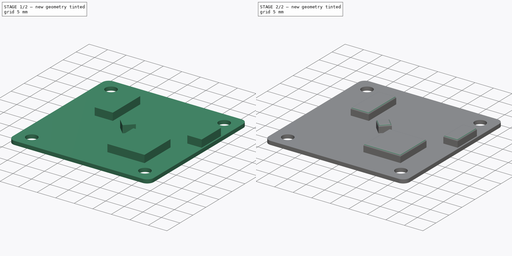
[diagram: build sequence overview — one tinted view per stage of 2, left to right]
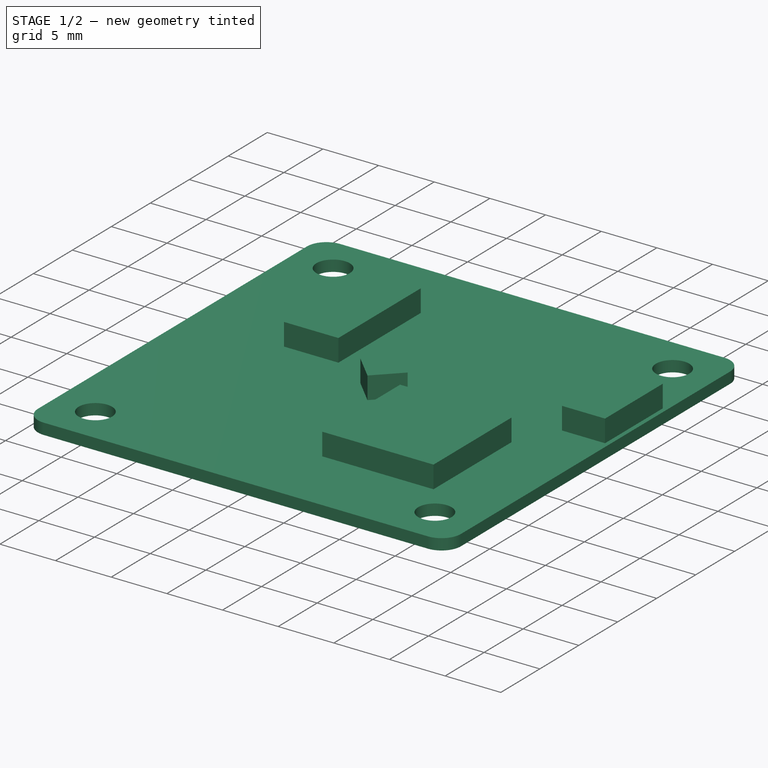
[diagram: stage 1 of 2 — iso view after this stage's code; geometry added in this stage tinted green]
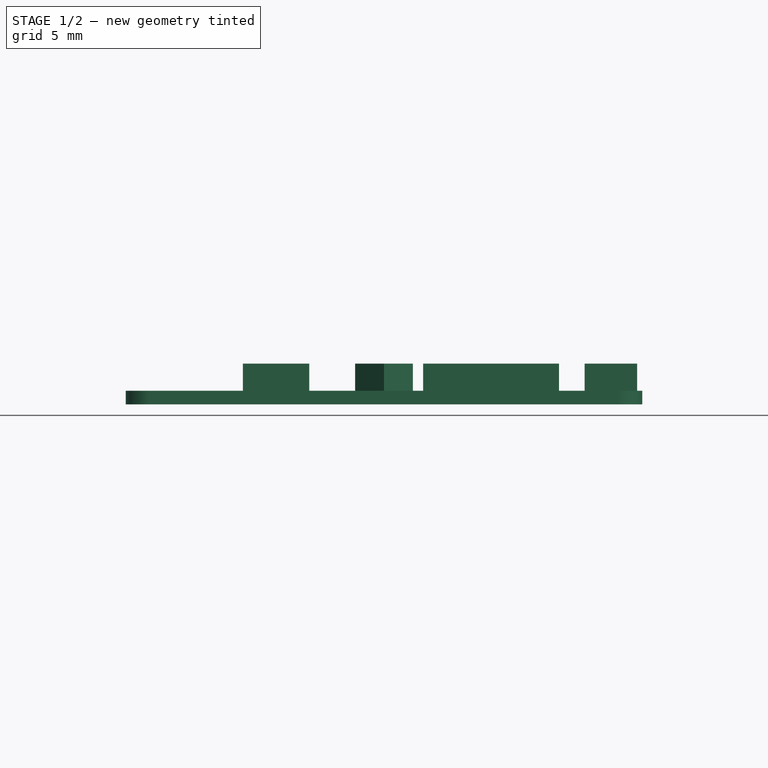
[diagram: stage 1 of 2 — front view after this stage's code; geometry added in this stage tinted green]
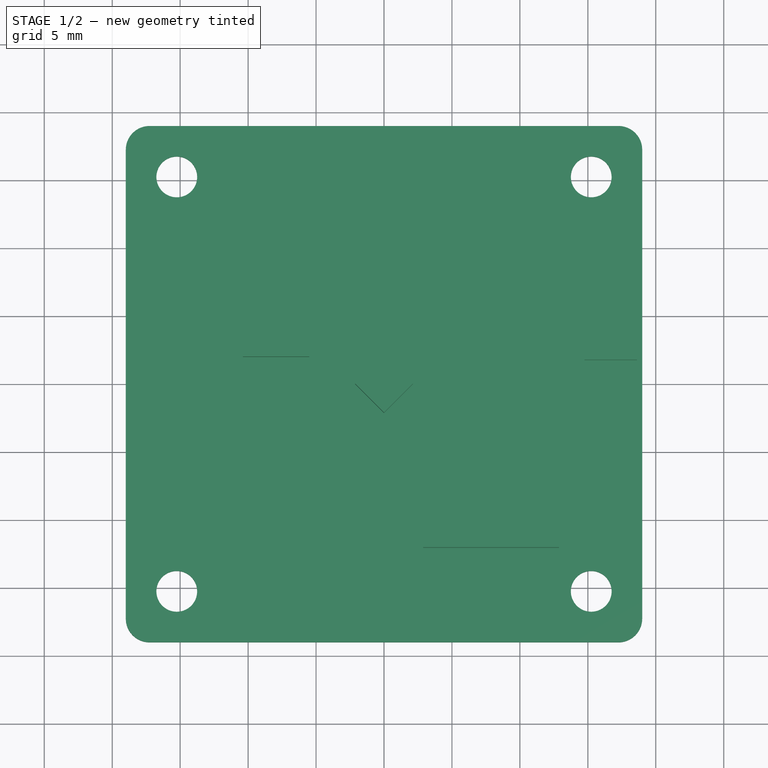
[diagram: stage 1 of 2 — top view after this stage's code; geometry added in this stage tinted green]
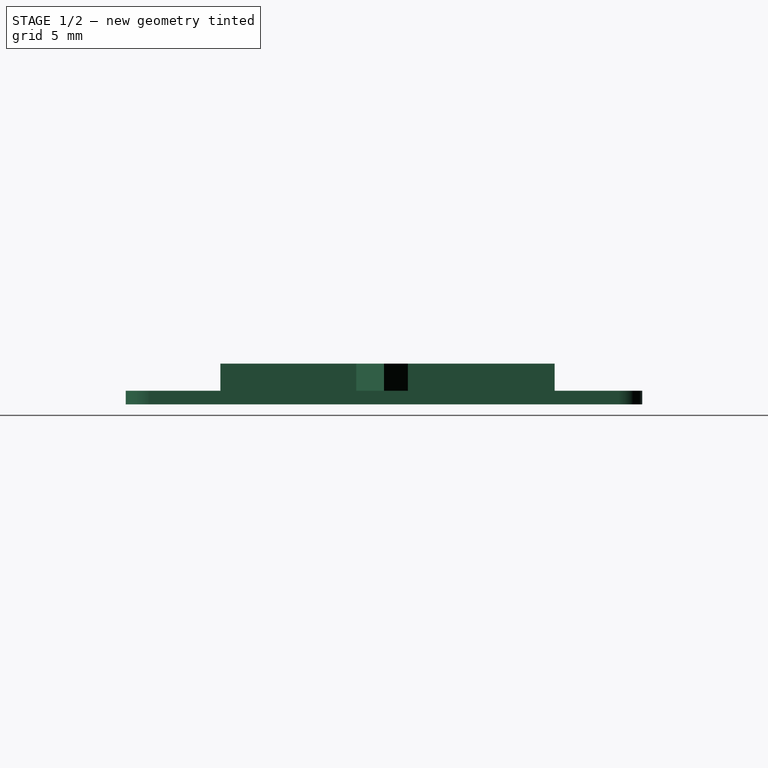
[diagram: stage 1 of 2 — right view after this stage's code; geometry added in this stage tinted green]
FCSTD DOCUMENT  (FreeCAD 0.18RUnknown)
Label: fc
License: All rights reserved
LicenseURL: http://en.wikipedia.org/wiki/All_rights_reserved
objects: Sketcher::SketchObject×2, PartDesign::Pad×2, PartDesign::Fillet×1, PartDesign::Body×1
note: 8 computed .brp shape members not serialized (recipe doc carries the construction recipe); baked Part::Feature solids carry a one-line shape summary decoded from their .brp

FEATURE [Sketcher::SketchObject] Sketch
  MapMode = 5
  Support = -> [XY_Plane]
  sketch-geometry (16):
    g0: LineSegment StartX=-17.25 StartY=19 StartZ=0 EndX=17.25 EndY=19 EndZ=0
    g1: LineSegment StartX=19 StartY=17.25 StartZ=0 EndX=19 EndY=-17.25 EndZ=0
    g2: LineSegment StartX=17.25 StartY=-19 StartZ=0 EndX=-17.25 EndY=-19 EndZ=0
    g3: LineSegment StartX=-19 StartY=-17.25 StartZ=0 EndX=-19 EndY=17.25 EndZ=0
    g4: ArcOfCircle CenterX=17.25 CenterY=17.25 CenterZ=0 NormalX=0 NormalY=0 NormalZ=1 AngleXU=0 Radius=1.75 StartAngle=0 EndAngle=1.5708
    g5: ArcOfCircle CenterX=-17.25 CenterY=17.25 CenterZ=0 NormalX=0 NormalY=0 NormalZ=1 AngleXU=0 Radius=1.75 StartAngle=1.5708 EndAngle=3.14159
    g6: ArcOfCircle CenterX=-17.25 CenterY=-17.25 CenterZ=0 NormalX=0 NormalY=0 NormalZ=1 AngleXU=0 Radius=1.75 StartAngle=3.14159 EndAngle=4.71239
    g7: ArcOfCircle CenterX=17.25 CenterY=-17.25 CenterZ=0 NormalX=0 NormalY=0 NormalZ=1 AngleXU=0 Radius=1.75 StartAngle=4.71239 EndAngle=6.28319
    g8: Circle CenterX=15.25 CenterY=15.25 CenterZ=0 NormalX=0 NormalY=0 NormalZ=1 AngleXU=0 Radius=1.5
    g9: Circle CenterX=-15.25 CenterY=-15.25 CenterZ=0 NormalX=0 NormalY=0 NormalZ=1 AngleXU=0 Radius=1.5
    g10: Circle CenterX=-15.25 CenterY=15.25 CenterZ=0 NormalX=0 NormalY=0 NormalZ=1 AngleXU=0 Radius=1.5
    g11: Circle CenterX=15.25 CenterY=-15.25 CenterZ=0 NormalX=0 NormalY=0 NormalZ=1 AngleXU=0 Radius=1.5
    g12: LineSegment [constr] StartX=-15.25 StartY=15.25 StartZ=0 EndX=15.25 EndY=15.25 EndZ=0
    g13: LineSegment [constr] StartX=15.25 StartY=15.25 StartZ=0 EndX=15.25 EndY=-15.25 EndZ=0
    g14: LineSegment [constr] StartX=15.25 StartY=-15.25 StartZ=0 EndX=-15.25 EndY=-15.25 EndZ=0
    g15: LineSegment [constr] StartX=-15.25 StartY=-15.25 StartZ=0 EndX=-15.25 EndY=15.25 EndZ=0
  constraints (37):
    c: Horizontal(g0)
    c: Vertical(g1)
    c: Vertical(g3)
    c: Tangent(g0,g4) = 1.5708
    c: Tangent(g1,g4) = 1.5708
    c: Tangent(g3,g5) = 1.5708
    c: Tangent(g0,g5) = 1.5708
    c: Tangent(g3,g6) = 1.5708
    c: Tangent(g2,g6) = 1.5708
    c: Tangent(g2,g7) = 1.5708
    c: Tangent(g1,g7) = 1.5708
    c: DistanceY(g2,g0) = 38
    c: Symmetric(g0,g2,g-1)
    c: Symmetric(g0,g2,g-1)
    c: Equal(g4,g5)
    c: Equal(g5,g6)
    c: Radius(g7) = 1.75
    c: DistanceX(g3,g1) = 38
    c: DistanceX(g9,g11) = 30.5
    c: Symmetric(g8,g9,g-1)
    c: Symmetric(g11,g10,g-1)
    c: Equal(g10,g8)
    c: Equal(g8,g11)
    c: Equal(g11,g9)
    c: Radius(g8) = 1.5
    c: Coincident(g12,g13)
    c: Coincident(g13,g14)
    c: Coincident(g14,g15)
    c: Coincident(g15,g12)
    c: Horizontal(g12)
    c: Horizontal(g14)
    c: Vertical(g13)
    c: Vertical(g15)
    c: Coincident(g12,g10)
    c: Coincident(g13,g11)
    c: Coincident(g14,g9)
    c: Equal(g13,g14)
FEATURE [PartDesign::Pad] Pad
  Length = 1
  Length2 = 100
  Profile = -> Sketch
  Type = 0
FEATURE [Sketcher::SketchObject] Sketch001
  MapMode = 5
  Placement = pos=(0,0,1) rot=(0,0,1;0rad)
  Support = -> [Pad]
  sketch-geometry (17):
    g0: LineSegment StartX=2.88143 StartY=-2.04409 StartZ=0 EndX=12.8814 EndY=-2.04409 EndZ=0
    g1: LineSegment StartX=12.8814 StartY=-2.04409 StartZ=0 EndX=12.8814 EndY=-12.0441 EndZ=0
    g2: LineSegment StartX=12.8814 StartY=-12.0441 StartZ=0 EndX=2.88143 EndY=-12.0441 EndZ=0
    g3: LineSegment StartX=2.88143 StartY=-12.0441 StartZ=0 EndX=2.88143 EndY=-2.04409 EndZ=0
    g4: LineSegment StartX=3.11e-14 StartY=-2.12132 StartZ=0 EndX=2.12132 EndY=2.26e-14 EndZ=0
    g5: LineSegment StartX=2.12132 StartY=2.26e-14 StartZ=0 EndX=-3.95e-14 EndY=2.12132 EndZ=0
    g6: LineSegment StartX=-3.95e-14 StartY=2.12132 StartZ=0 EndX=-2.12132 EndY=0 EndZ=0
    g7: LineSegment StartX=-2.12132 StartY=0 StartZ=0 EndX=3.11e-14 EndY=-2.12132 EndZ=0
    g8: Circle [constr] CenterX=0 CenterY=0 CenterZ=0 NormalX=0 NormalY=0 NormalZ=1 AngleXU=0 Radius=2.12132
    g9: LineSegment StartX=-10.3829 StartY=12.5597 StartZ=0 EndX=-5.49613 EndY=12.5597 EndZ=0
    g10: LineSegment StartX=-5.49613 StartY=12.5597 StartZ=0 EndX=-5.49613 EndY=1.99798 EndZ=0
    g11: LineSegment StartX=-5.49613 StartY=1.99798 StartZ=0 EndX=-10.3829 EndY=1.99798 EndZ=0
    g12: LineSegment StartX=-10.3829 StartY=1.99798 StartZ=0 EndX=-10.3829 EndY=12.5597 EndZ=0
    g13: LineSegment StartX=14.7604 StartY=9.17052 StartZ=0 EndX=18.6225 EndY=9.17052 EndZ=0
    g14: LineSegment StartX=18.6225 StartY=9.17052 StartZ=0 EndX=18.6225 EndY=1.76152 EndZ=0
    g15: LineSegment StartX=18.6225 StartY=1.76152 StartZ=0 EndX=14.7604 EndY=1.76152 EndZ=0
    g16: LineSegment StartX=14.7604 StartY=1.76152 StartZ=0 EndX=14.7604 EndY=9.17052 EndZ=0
  constraints (40):
    c: Coincident(g0,g1)
    c: Coincident(g1,g2)
    c: Coincident(g2,g3)
    c: Coincident(g3,g0)
    c: Horizontal(g0)
    c: Horizontal(g2)
    c: Vertical(g1)
    c: Vertical(g3)
    c: Equal(g0,g1)
    c: DistanceX(g0,g0) = 10
    c: Coincident(g4,g5)
    c: Coincident(g5,g6)
    c: Coincident(g6,g7)
    c: Coincident(g7,g4)
    c: Equal(g4,g5)
    c: Equal(g4,g6)
    c: Equal(g4,g7)
    c: PointOnObject(g4,g8)
    c: PointOnObject(g5,g8)
    c: PointOnObject(g6,g8)
    c: PointOnObject(g7,g8)
    c: Distance(g6) = 3
    c: Coincident(g-1,g8)
    c: PointOnObject(g6,g-1)
    c: Coincident(g9,g10)
    c: Coincident(g10,g11)
    c: Coincident(g11,g12)
    c: Coincident(g12,g9)
    c: Horizontal(g9)
    c: Horizontal(g11)
    c: Vertical(g10)
    c: Vertical(g12)
    c: Coincident(g13,g14)
    c: Coincident(g14,g15)
    c: Coincident(g15,g16)
    c: Coincident(g16,g13)
    c: Horizontal(g13)
    c: Horizontal(g15)
    c: Vertical(g14)
    c: Vertical(g16)
FEATURE [PartDesign::Pad] Pad001
  BaseFeature = -> Pad
  Length = 2
  Length2 = 100
  Profile = -> Sketch001
  Type = 0
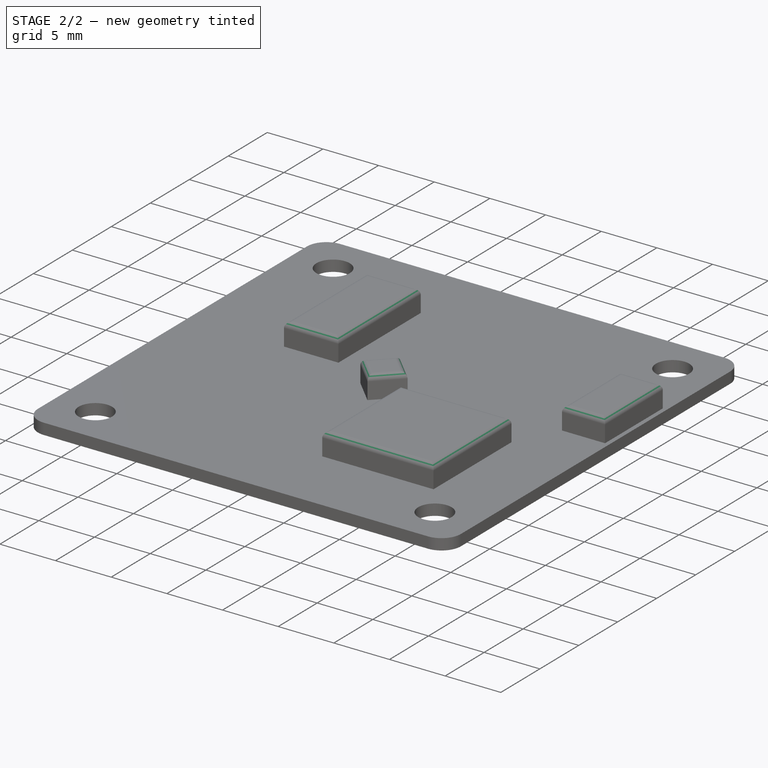
[diagram: stage 2 of 2 — iso view after this stage's code; geometry added in this stage tinted green]
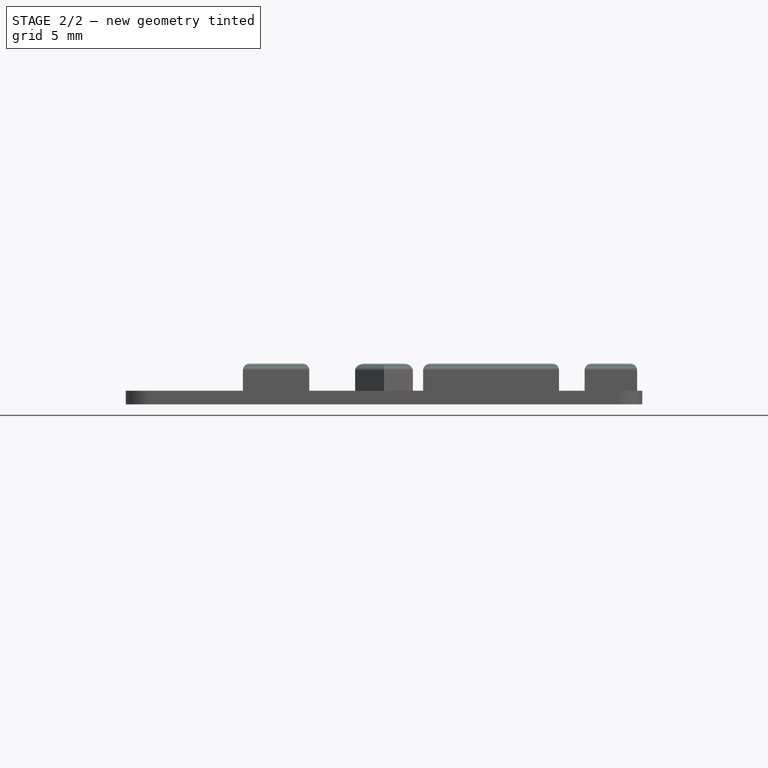
[diagram: stage 2 of 2 — front view after this stage's code; geometry added in this stage tinted green]
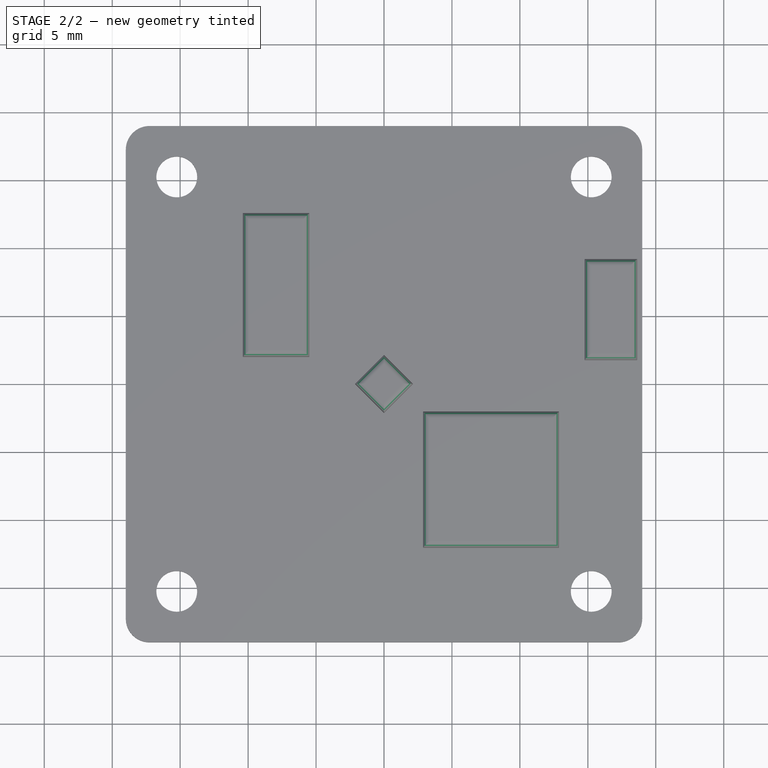
[diagram: stage 2 of 2 — top view after this stage's code; geometry added in this stage tinted green]
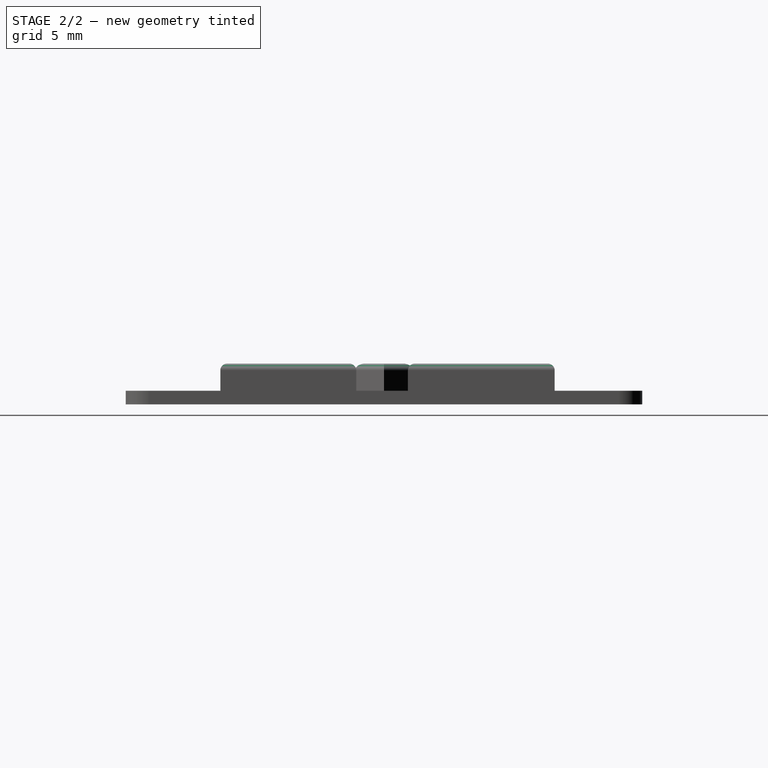
[diagram: stage 2 of 2 — right view after this stage's code; geometry added in this stage tinted green]
FEATURE [PartDesign::Fillet] Fillet
  Base = -> Pad001 [Face34,Face31,Face33,Face32]
  BaseFeature = -> Pad001
  Radius = 0.5
FEATURE [PartDesign::Body] Body
  Group = -> [Sketch,Pad,Sketch001,Pad001,Fillet]
  Origin = -> Origin
  Tip = -> Fillet
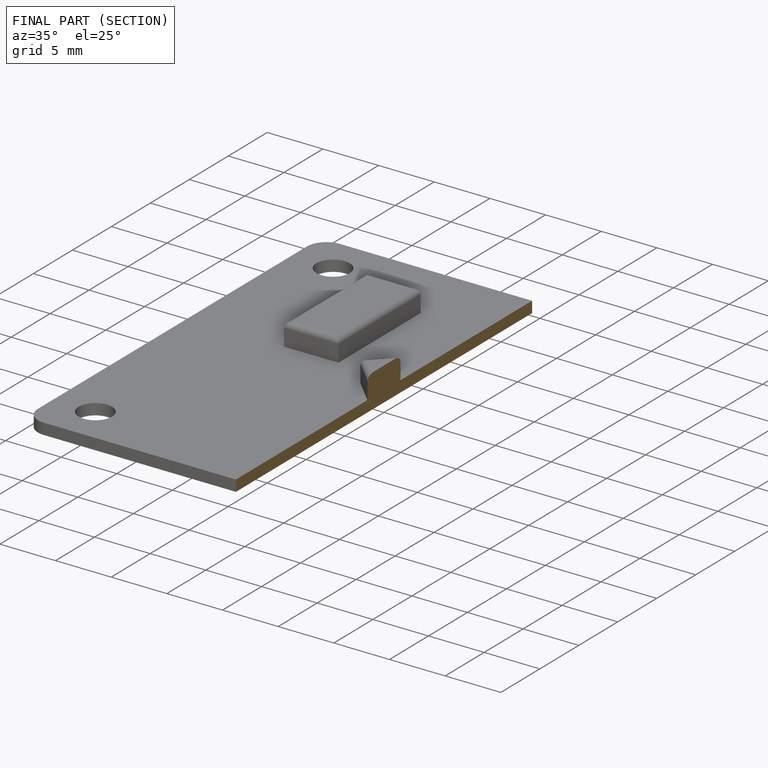
[diagram: finished part — half-section view (interior)]
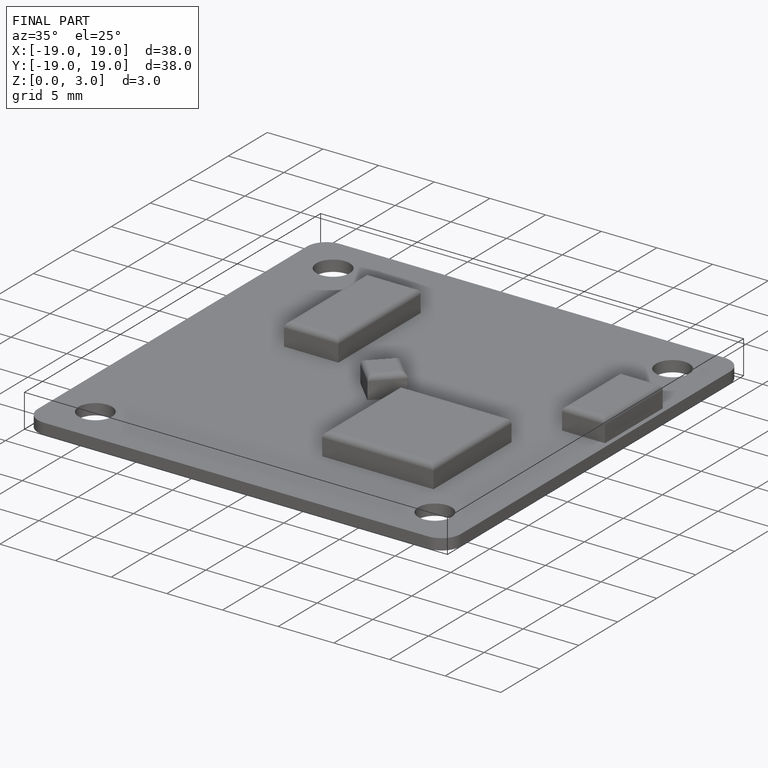
[diagram: finished part — iso view with bounding-box wireframe]
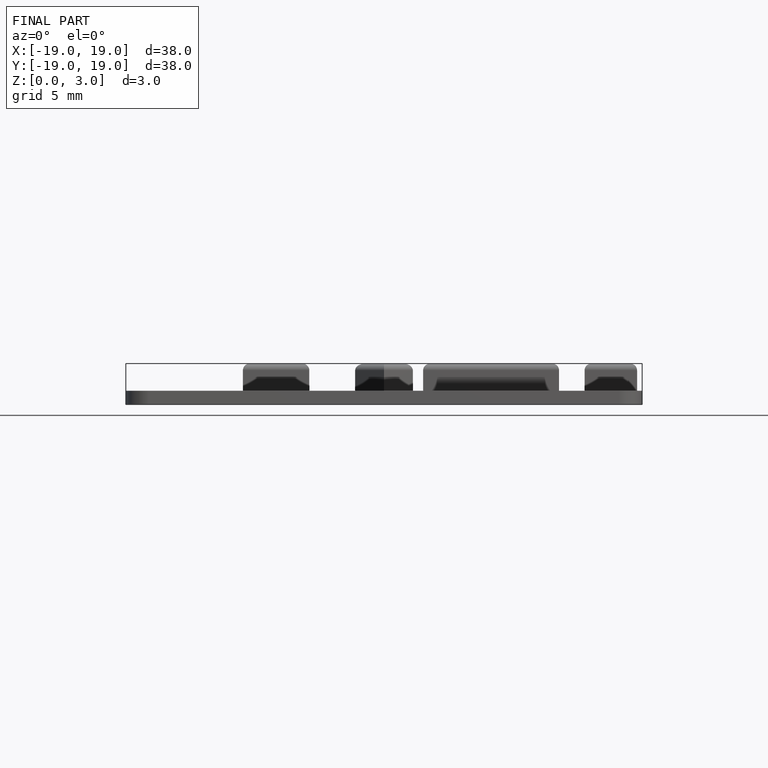
[diagram: finished part — front view with bounding-box wireframe]
